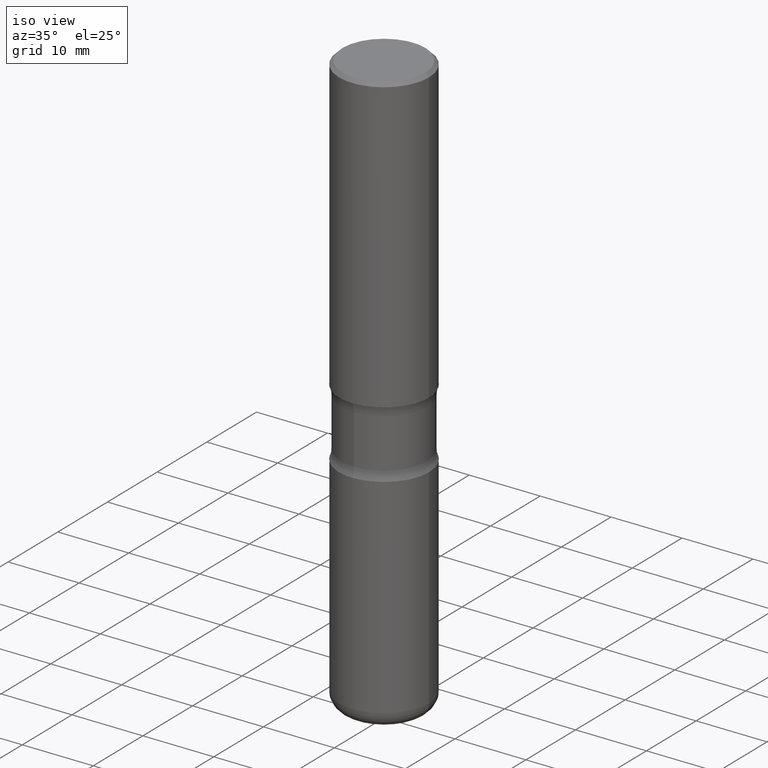
[diagram: clean part render]
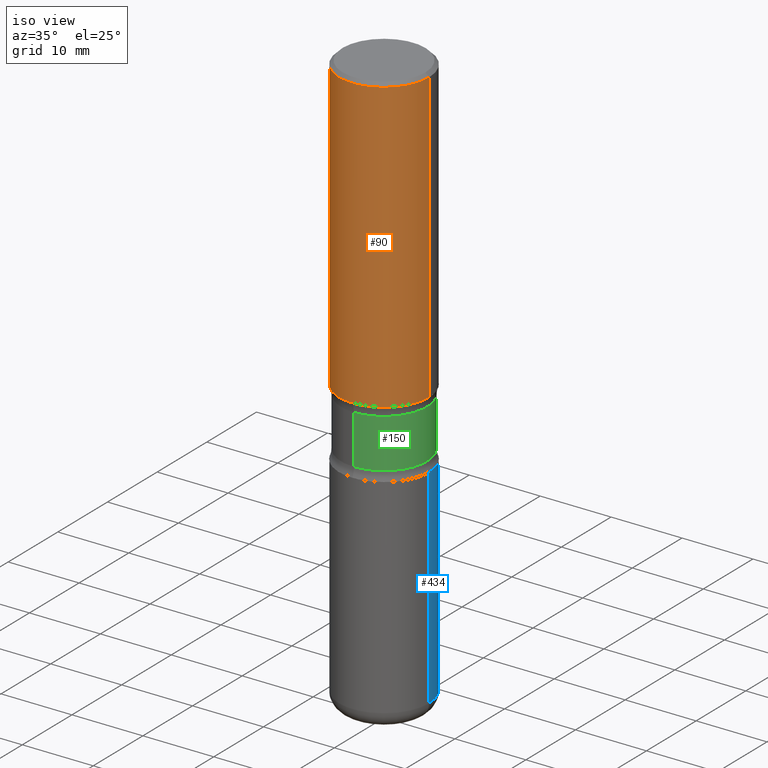
[diagram: same view with three faces highlighted in distinct colors, each labeled with its STEP entity id]
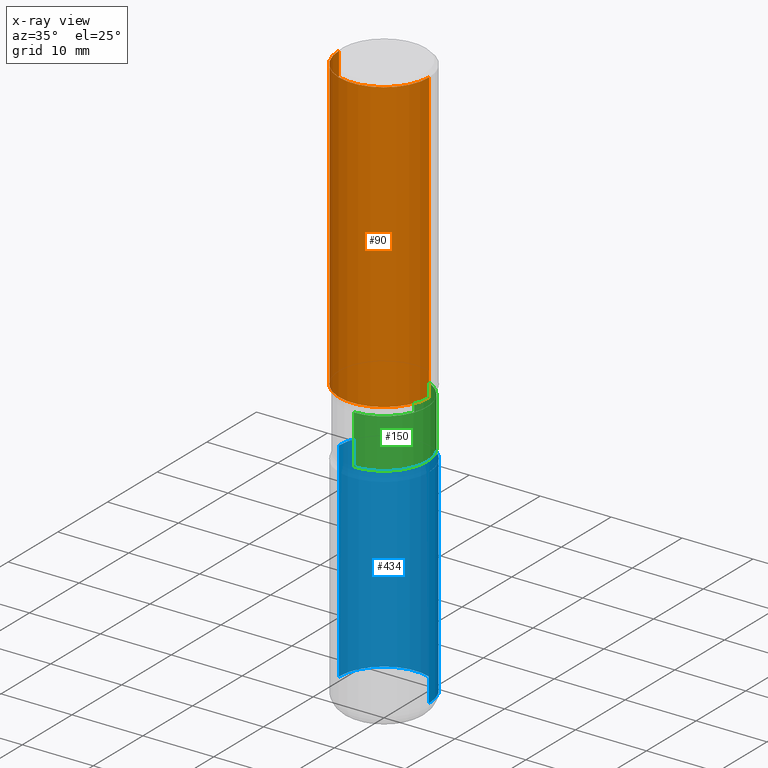
[diagram: x-ray of the same camera — body ghosted, the three highlighted faces saturated]
A machine part, iso view with three faces highlighted in distinct colors.
The next image is the same camera in x-ray (body ghosted, the three faces saturated) — at least one of them is partly hidden behind the body in this view.
Their STEP definitions:

[orange] entity #90 — the highlighted cylindrical surface (partial cylindrical patch) has radius 6.35 mm, axis along (-0, 0, 1).
#7 = LINE ( 'NONE', #327, #521 ) ;
#54 = CARTESIAN_POINT ( 'NONE',  ( 4.890937612370306439E-31, -6.982962677686338448E-17, -0.02000000000000013572 ) ) ;
#74 = CARTESIAN_POINT ( 'NONE',  ( 0.2500000000000005551, -7.419397845041682046E-15, -1.624999999999999778 ) ) ;
#81 = ORIENTED_EDGE ( 'NONE', *, *, #298, .F. ) ;
#82 = ORIENTED_EDGE ( 'NONE', *, *, #181, .F. ) ;
#88 = DIRECTION ( 'NONE',  ( 1.000000000000000000, -6.982962677686266711E-15, 0.000000000000000000 ) ) ;
#90 = ADVANCED_FACE ( 'NONE', ( #423 ), #513, .T. ) ;
#96 = ORIENTED_EDGE ( 'NONE', *, *, #238, .T. ) ;
#140 = VECTOR ( 'NONE', #407, 39.37007874015748143 ) ;
#145 = DIRECTION ( 'NONE',  ( 1.000000000000000000, -6.982962677686265922E-15, 4.876176775795935232E-29 ) ) ;
#163 = DIRECTION ( 'NONE',  ( -2.445468806185136597E-29, 3.491481338843145583E-15, 1.000000000000000000 ) ) ;
#175 = CARTESIAN_POINT ( 'NONE',  ( 0.2500000000000004996, -1.745740669421570030E-15, 1.219044193948986190E-29 ) ) ;
#181 = EDGE_CURVE ( 'NONE', #309, #441, #445, .T. ) ;
#207 = AXIS2_PLACEMENT_3D ( 'NONE', #54, #325, #88 ) ;
#238 = EDGE_CURVE ( 'NONE', #515, #441, #244, .T. ) ;
#242 = CIRCLE ( 'NONE', #284, 0.2500000000000005551 ) ;
#244 = LINE ( 'NONE', #175, #140 ) ;
#269 = CARTESIAN_POINT ( 'NONE',  ( 0.000000000000000000, 0.000000000000000000, 0.000000000000000000 ) ) ;
#284 = AXIS2_PLACEMENT_3D ( 'NONE', #425, #163, #430 ) ;
#285 = DIRECTION ( 'NONE',  ( -2.445468806185136597E-29, 3.491481338843145583E-15, 1.000000000000000000 ) ) ;
#298 = EDGE_CURVE ( 'NONE', #523, #309, #7, .T. ) ;
#308 = ORIENTED_EDGE ( 'NONE', *, *, #533, .T. ) ;
#309 = VERTEX_POINT ( 'NONE', #335 ) ;
#325 = DIRECTION ( 'NONE',  ( -2.445468806185136597E-29, 3.491481338843145583E-15, 1.000000000000000000 ) ) ;
#327 = CARTESIAN_POINT ( 'NONE',  ( -0.2500000000000004996, 1.776356839400254015E-15, -1.229733772563728688E-29 ) ) ;
#335 = CARTESIAN_POINT ( 'NONE',  ( -0.2500000000000003331, 1.675911042644705746E-15, -0.02000000000000013572 ) ) ;
#382 = CARTESIAN_POINT ( 'NONE',  ( -0.2500000000000005551, -1.095386561798230783E-15, -1.624999999999999778 ) ) ;
#407 = DIRECTION ( 'NONE',  ( -2.445468806185136877E-29, 3.491481338843145188E-15, 1.000000000000000000 ) ) ;
#423 = FACE_OUTER_BOUND ( 'NONE', #560, .T. ) ;
#425 = CARTESIAN_POINT ( 'NONE',  ( 3.973886810050846409E-29, -5.673657175620110635E-15, -1.624999999999999778 ) ) ;
#430 = DIRECTION ( 'NONE',  ( 1.000000000000000000, -6.982962677686266711E-15, 0.000000000000000000 ) ) ;
#441 = VERTEX_POINT ( 'NONE', #550 ) ;
#445 = CIRCLE ( 'NONE', #207, 0.2500000000000003331 ) ;
#464 = AXIS2_PLACEMENT_3D ( 'NONE', #269, #285, #145 ) ;
#491 = DIRECTION ( 'NONE',  ( -2.445468806185136877E-29, 3.491481338843145188E-15, 1.000000000000000000 ) ) ;
#513 = CYLINDRICAL_SURFACE ( 'NONE', #464, 0.2500000000000004996 ) ;
#515 = VERTEX_POINT ( 'NONE', #74 ) ;
#521 = VECTOR ( 'NONE', #491, 39.37007874015748143 ) ;
#523 = VERTEX_POINT ( 'NONE', #382 ) ;
#533 = EDGE_CURVE ( 'NONE', #523, #515, #242, .T. ) ;
#550 = CARTESIAN_POINT ( 'NONE',  ( 0.2500000000000003331, -1.784954126219748555E-15, -0.02000000000000013572 ) ) ;
#560 = EDGE_LOOP ( 'NONE', ( #81, #308, #96, #82 ) ) ;

[blue] entity #434 — the highlighted cylindrical surface (partial cylindrical patch) has radius 6.35 mm, axis along (-0, 0, 1).
#2 = VERTEX_POINT ( 'NONE', #289 ) ;
#25 = CIRCLE ( 'NONE', #146, 0.2500000000000006106 ) ;
#33 = DIRECTION ( 'NONE',  ( -2.445468806185136597E-29, 3.491481338843145583E-15, 1.000000000000000000 ) ) ;
#36 = CARTESIAN_POINT ( 'NONE',  ( -0.2500000000000004441, -9.256724191344087541E-15, -3.160000000000000142 ) ) ;
#57 = VECTOR ( 'NONE', #168, 39.37007874015748143 ) ;
#58 = CIRCLE ( 'NONE', #494, 0.2500000000000004996 ) ;
#63 = EDGE_CURVE ( 'NONE', #475, #99, #501, .T. ) ;
#72 = VECTOR ( 'NONE', #529, 39.37007874015748143 ) ;
#99 = VERTEX_POINT ( 'NONE', #437 ) ;
#104 = AXIS2_PLACEMENT_3D ( 'NONE', #204, #33, #378 ) ;
#106 = EDGE_CURVE ( 'NONE', #184, #2, #241, .T. ) ;
#114 = DIRECTION ( 'NONE',  ( 1.000000000000000000, -6.982962677686268288E-15, 0.000000000000000000 ) ) ;
#125 = ORIENTED_EDGE ( 'NONE', *, *, #106, .F. ) ;
#146 = AXIS2_PLACEMENT_3D ( 'NONE', #271, #361, #231 ) ;
#161 = CARTESIAN_POINT ( 'NONE',  ( 4.890937612370274875E-29, -6.982962677686292743E-15, -2.000000000000000444 ) ) ;
#168 = DIRECTION ( 'NONE',  ( -2.445468806185136877E-29, 3.491481338843145188E-15, 1.000000000000000000 ) ) ;
#184 = VERTEX_POINT ( 'NONE', #448 ) ;
#202 = FACE_OUTER_BOUND ( 'NONE', #257, .T. ) ;
#204 = CARTESIAN_POINT ( 'NONE',  ( 0.000000000000000000, 0.000000000000000000, 0.000000000000000000 ) ) ;
#231 = DIRECTION ( 'NONE',  ( 1.000000000000000000, -6.982962677686269077E-15, 0.000000000000000000 ) ) ;
#241 = LINE ( 'NONE', #281, #72 ) ;
#245 = DIRECTION ( 'NONE',  ( -2.445468806185136597E-29, 3.491481338843145583E-15, 1.000000000000000000 ) ) ;
#257 = EDGE_LOOP ( 'NONE', ( #431, #306, #506, #125 ) ) ;
#260 = EDGE_CURVE ( 'NONE', #184, #475, #25, .T. ) ;
#271 = CARTESIAN_POINT ( 'NONE',  ( 7.727681427545032274E-29, -1.103308103074433958E-14, -3.160000000000000142 ) ) ;
#281 = CARTESIAN_POINT ( 'NONE',  ( 0.2500000000000005551, -1.745740669421570622E-15, 1.219044193948986471E-29 ) ) ;
#289 = CARTESIAN_POINT ( 'NONE',  ( 0.2500000000000004996, -8.728703347107863365E-15, -2.000000000000000444 ) ) ;
#306 = ORIENTED_EDGE ( 'NONE', *, *, #63, .T. ) ;
#333 = CYLINDRICAL_SURFACE ( 'NONE', #104, 0.2500000000000005551 ) ;
#361 = DIRECTION ( 'NONE',  ( -2.445468806185136597E-29, 3.491481338843145583E-15, 1.000000000000000000 ) ) ;
#378 = DIRECTION ( 'NONE',  ( 1.000000000000000000, -6.982962677686266711E-15, 4.876176775795935232E-29 ) ) ;
#414 = EDGE_CURVE ( 'NONE', #2, #99, #58, .T. ) ;
#431 = ORIENTED_EDGE ( 'NONE', *, *, #260, .T. ) ;
#434 = ADVANCED_FACE ( 'NONE', ( #202 ), #333, .T. ) ;
#437 = CARTESIAN_POINT ( 'NONE',  ( -0.2500000000000004996, -7.231665014815061360E-15, -2.000000000000000444 ) ) ;
#448 = CARTESIAN_POINT ( 'NONE',  ( 0.2500000000000004441, -1.277882170016590942E-14, -3.160000000000000142 ) ) ;
#475 = VERTEX_POINT ( 'NONE', #36 ) ;
#494 = AXIS2_PLACEMENT_3D ( 'NONE', #161, #245, #114 ) ;
#501 = LINE ( 'NONE', #554, #57 ) ;
#506 = ORIENTED_EDGE ( 'NONE', *, *, #414, .F. ) ;
#529 = DIRECTION ( 'NONE',  ( -2.445468806185136877E-29, 3.491481338843145188E-15, 1.000000000000000000 ) ) ;
#554 = CARTESIAN_POINT ( 'NONE',  ( -0.2500000000000005551, 1.776356839400254409E-15, -1.229733772563729108E-29 ) ) ;

[green] entity #150 — the highlighted cylindrical surface (partial cylindrical patch) has radius 6.0706 mm, axis along (0, -0, -1).
#14 = VERTEX_POINT ( 'NONE', #249 ) ;
#16 = EDGE_LOOP ( 'NONE', ( #296, #519, #79, #173 ) ) ;
#24 = DIRECTION ( 'NONE',  ( 2.319831445618894347E-29, -3.671401190008483650E-15, -1.000000000000000000 ) ) ;
#44 = CARTESIAN_POINT ( 'NONE',  ( 1.668928079967096646E-15, 0.2389999999999885827, -3.250000000000001332 ) ) ;
#67 = CARTESIAN_POINT ( 'NONE',  ( 4.139947335781554076E-29, -5.794433829885863530E-15, -1.676273774973178199 ) ) ;
#73 = AXIS2_PLACEMENT_3D ( 'NONE', #67, #24, #194 ) ;
#79 = ORIENTED_EDGE ( 'NONE', *, *, #334, .F. ) ;
#92 = CARTESIAN_POINT ( 'NONE',  ( -1.639659021467319230E-15, -0.2390000000000117586, -3.249999999999999112 ) ) ;
#97 = EDGE_CURVE ( 'NONE', #154, #303, #499, .T. ) ;
#101 = FACE_OUTER_BOUND ( 'NONE', #16, .T. ) ;
#103 = CARTESIAN_POINT ( 'NONE',  ( 1.668928079967066866E-15, 0.2389999999999934122, -1.948726225026823355 ) ) ;
#136 = DIRECTION ( 'NONE',  ( 6.982962677686266711E-15, 1.000000000000000000, -4.572130533329308080E-15 ) ) ;
#150 = ADVANCED_FACE ( 'NONE', ( #101 ), #409, .T. ) ;
#154 = VERTEX_POINT ( 'NONE', #442 ) ;
#156 = DIRECTION ( 'NONE',  ( 2.319831445618894347E-29, -3.671401190008483650E-15, -1.000000000000000000 ) ) ;
#173 = ORIENTED_EDGE ( 'NONE', *, *, #97, .F. ) ;
#194 = DIRECTION ( 'NONE',  ( 6.982962677686265922E-15, 1.000000000000000000, -3.429097899996981454E-15 ) ) ;
#195 = EDGE_CURVE ( 'NONE', #14, #314, #482, .T. ) ;
#208 = CIRCLE ( 'NONE', #530, 0.2390000000000002123 ) ;
#218 = AXIS2_PLACEMENT_3D ( 'NONE', #283, #444, #136 ) ;
#225 = DIRECTION ( 'NONE',  ( 2.319831445618894347E-29, -3.671401190008483650E-15, -1.000000000000000000 ) ) ;
#249 = CARTESIAN_POINT ( 'NONE',  ( -1.677391760455100666E-15, -0.2390000000000059299, -1.676273774973177533 ) ) ;
#283 = CARTESIAN_POINT ( 'NONE',  ( 7.790726919393891548E-29, -1.157221416519689612E-14, -3.250000000000000000 ) ) ;
#296 = ORIENTED_EDGE ( 'NONE', *, *, #355, .T. ) ;
#303 = VERTEX_POINT ( 'NONE', #103 ) ;
#314 = VERTEX_POINT ( 'NONE', #539 ) ;
#321 = VECTOR ( 'NONE', #225, 39.37007874015748143 ) ;
#329 = DIRECTION ( 'NONE',  ( 6.982962677686265133E-15, 1.000000000000000000, -3.429097899996980271E-15 ) ) ;
#334 = EDGE_CURVE ( 'NONE', #303, #314, #208, .T. ) ;
#346 = CIRCLE ( 'NONE', #73, 0.2390000000000001290 ) ;
#355 = EDGE_CURVE ( 'NONE', #154, #14, #346, .T. ) ;
#369 = VECTOR ( 'NONE', #436, 39.37007874015748143 ) ;
#409 = CYLINDRICAL_SURFACE ( 'NONE', #218, 0.2390000000000001568 ) ;
#436 = DIRECTION ( 'NONE',  ( 2.319831445618894347E-29, -3.671401190008483650E-15, -1.000000000000000000 ) ) ;
#442 = CARTESIAN_POINT ( 'NONE',  ( 1.668928079967059964E-15, 0.2389999999999943281, -1.676273774973179087 ) ) ;
#444 = DIRECTION ( 'NONE',  ( 2.319831445618894347E-29, -3.671401190008483650E-15, -1.000000000000000000 ) ) ;
#482 = LINE ( 'NONE', #92, #369 ) ;
#499 = LINE ( 'NONE', #44, #321 ) ;
#502 = CARTESIAN_POINT ( 'NONE',  ( 4.771991096851908823E-29, -6.794716079233540390E-15, -1.948726225026822467 ) ) ;
#519 = ORIENTED_EDGE ( 'NONE', *, *, #195, .T. ) ;
#530 = AXIS2_PLACEMENT_3D ( 'NONE', #502, #156, #329 ) ;
#539 = CARTESIAN_POINT ( 'NONE',  ( -1.677391760455093961E-15, -0.2390000000000070401, -1.948726225026821579 ) ) ;